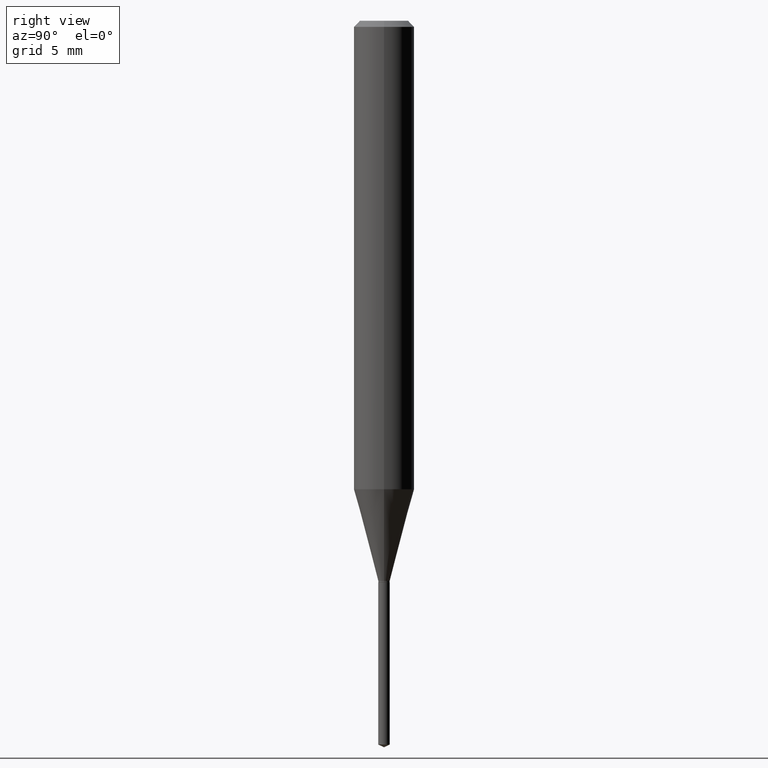
[diagram: clean part render]
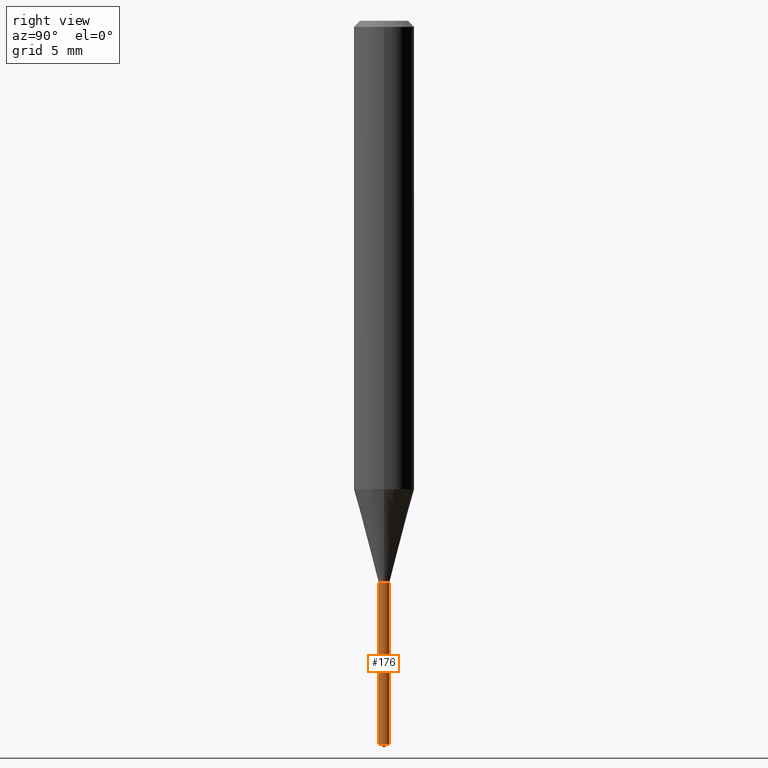
[diagram: same view with one face highlighted and labeled with its STEP entity id]
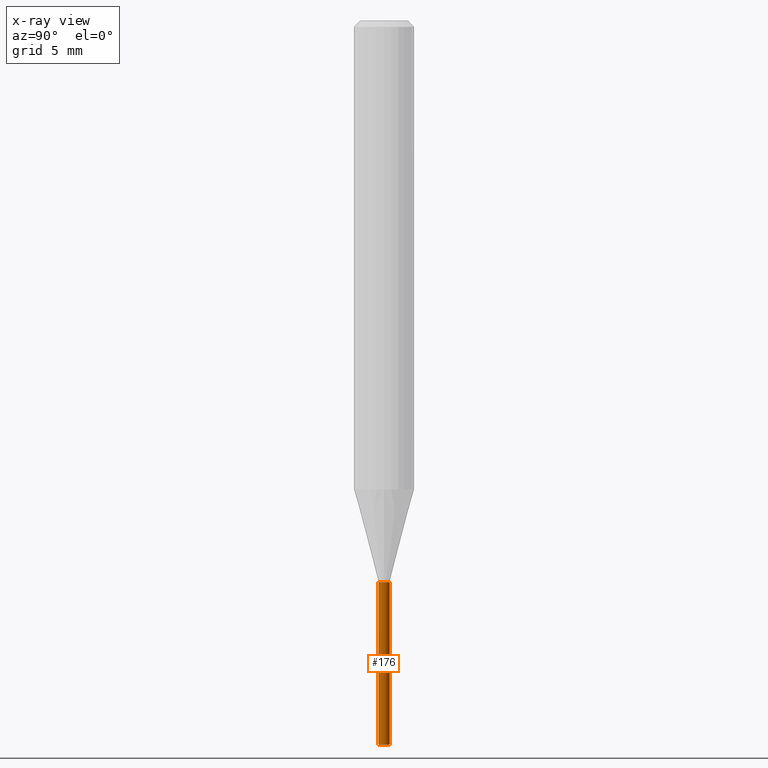
[diagram: x-ray of the same camera — body ghosted, the highlighted face saturated]
A machine part, right view. The second image highlights one B-rep face of the part: STEP entity #176.
The next image is the same camera in x-ray: the body ghosted, the highlighted face saturated — about 0% of this face is hidden behind the body in this view.
In plain terms, the highlighted cylindrical surface (edge-blend (fillet) strip) has radius 0.2997 mm, axis along (-0, 0, 1).
Its self-contained STEP definition (entity closure, byte-faithful):
#30 = FACE_OUTER_BOUND ( 'NONE', #314, .T. ) ;
#41 = CARTESIAN_POINT ( 'NONE',  ( 8.384404281972834178E-17, 0.01179999999999477821, -1.494497569633770784 ) ) ;
#71 = CARTESIAN_POINT ( 'NONE',  ( 3.654719988568187442E-29, -5.218049325682291102E-15, -1.494497569633770784 ) ) ;
#83 = LINE ( 'NONE', #284, #132 ) ;
#88 = EDGE_CURVE ( 'NONE', #281, #102, #83, .T. ) ;
#102 = VERTEX_POINT ( 'NONE', #127 ) ;
#113 = DIRECTION ( 'NONE',  ( -2.445387493514530158E-29, 3.491597783215483216E-15, 1.000000000000000000 ) ) ;
#127 = CARTESIAN_POINT ( 'NONE',  ( 8.384404281972840340E-17, 0.01179999999999594915, -1.160000000000000142 ) ) ;
#132 = VECTOR ( 'NONE', #169, 39.37007874015748143 ) ;
#169 = DIRECTION ( 'NONE',  ( -2.445387493514530158E-29, 3.491597783215483216E-15, 1.000000000000000000 ) ) ;
#175 = VERTEX_POINT ( 'NONE', #372 ) ;
#176 = ADVANCED_FACE ( 'NONE', ( #30 ), #326, .T. ) ;
#182 = CIRCLE ( 'NONE', #378, 0.01180000000000000146 ) ;
#183 = EDGE_CURVE ( 'NONE', #175, #220, #227, .T. ) ;
#186 = CIRCLE ( 'NONE', #382, 0.01180000000000000146 ) ;
#190 = DIRECTION ( 'NONE',  ( -2.445387493514530438E-29, 3.491597783215483216E-15, 1.000000000000000000 ) ) ;
#205 = ORIENTED_EDGE ( 'NONE', *, *, #183, .F. ) ;
#207 = CARTESIAN_POINT ( 'NONE',  ( -8.239895959666957699E-17, -0.01180000000000405204, -1.160000000000000142 ) ) ;
#220 = VERTEX_POINT ( 'NONE', #207 ) ;
#227 = LINE ( 'NONE', #376, #476 ) ;
#230 = EDGE_CURVE ( 'NONE', #220, #102, #186, .T. ) ;
#249 = DIRECTION ( 'NONE',  ( -6.982962677686265133E-15, -1.000000000000000000, 0.000000000000000000 ) ) ;
#281 = VERTEX_POINT ( 'NONE', #41 ) ;
#284 = CARTESIAN_POINT ( 'NONE',  ( 8.384404281972018200E-17, 0.01179999999999594915, -1.160000000000000142 ) ) ;
#287 = DIRECTION ( 'NONE',  ( -2.445387493514530438E-29, 3.491597783215483216E-15, 1.000000000000000000 ) ) ;
#314 = EDGE_LOOP ( 'NONE', ( #380, #482, #474, #205 ) ) ;
#315 = CARTESIAN_POINT ( 'NONE',  ( 2.836743815174758520E-29, -4.050118353058049996E-15, -1.160000000000000142 ) ) ;
#326 = CYLINDRICAL_SURFACE ( 'NONE', #401, 0.01180000000000000146 ) ;
#343 = DIRECTION ( 'NONE',  ( -6.982962677686265133E-15, -1.000000000000000000, 0.000000000000000000 ) ) ;
#350 = DIRECTION ( 'NONE',  ( -2.445387493514530438E-29, 3.491597783215483216E-15, 1.000000000000000000 ) ) ;
#359 = EDGE_CURVE ( 'NONE', #175, #281, #182, .T. ) ;
#372 = CARTESIAN_POINT ( 'NONE',  ( -8.239895959666136790E-17, -0.01180000000000521604, -1.494497569633770784 ) ) ;
#373 = DIRECTION ( 'NONE',  ( -6.982962677686265133E-15, -1.000000000000000000, 0.000000000000000000 ) ) ;
#376 = CARTESIAN_POINT ( 'NONE',  ( -8.239895959666957699E-17, -0.01180000000000405204, -1.160000000000000142 ) ) ;
#378 = AXIS2_PLACEMENT_3D ( 'NONE', #71, #190, #373 ) ;
#380 = ORIENTED_EDGE ( 'NONE', *, *, #359, .T. ) ;
#382 = AXIS2_PLACEMENT_3D ( 'NONE', #315, #350, #343 ) ;
#401 = AXIS2_PLACEMENT_3D ( 'NONE', #480, #287, #249 ) ;
#474 = ORIENTED_EDGE ( 'NONE', *, *, #230, .F. ) ;
#476 = VECTOR ( 'NONE', #113, 39.37007874015748143 ) ;
#480 = CARTESIAN_POINT ( 'NONE',  ( 2.836743815174758520E-29, -4.050118353058049996E-15, -1.160000000000000142 ) ) ;
#482 = ORIENTED_EDGE ( 'NONE', *, *, #88, .T. ) ;